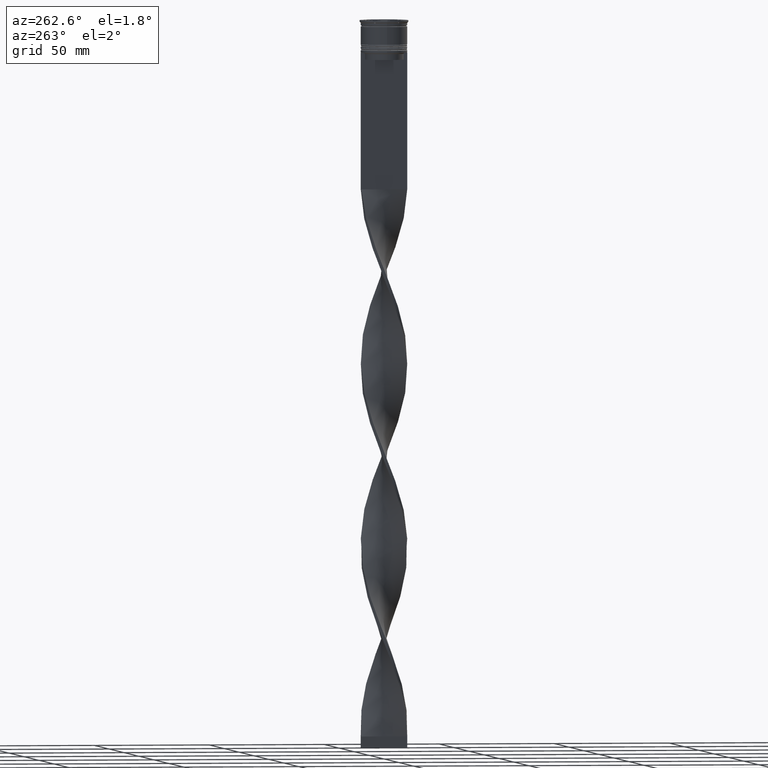
[diagram: clean part render]
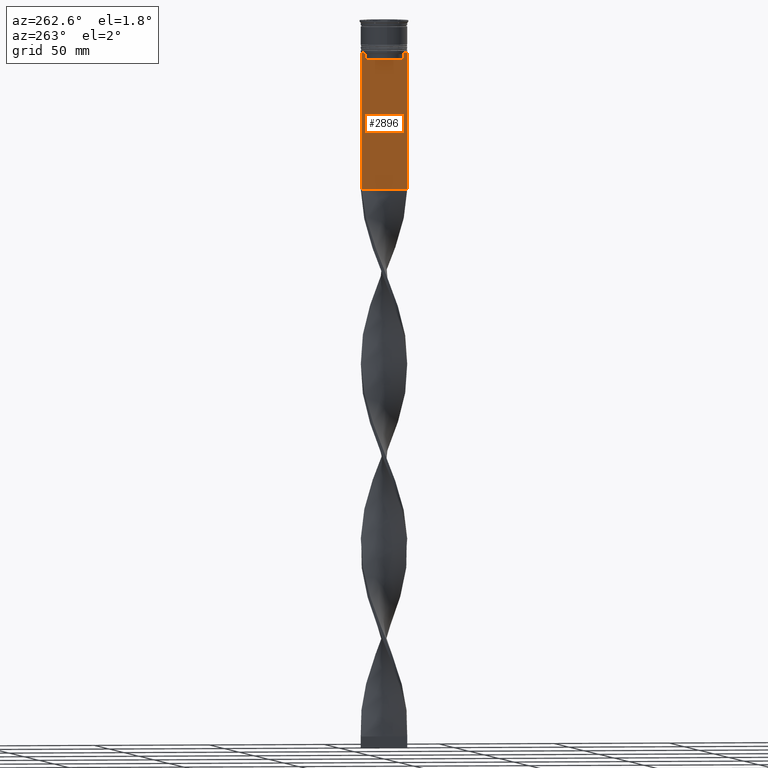
[diagram: same view with one face highlighted and labeled with its STEP entity id]
A machine part, auxiliary view. The second image highlights one B-rep face of the part: STEP entity #2896.
In plain terms, the highlighted planar face has unit normal (-1, 0, 0).
Its self-contained STEP definition (entity closure, byte-faithful):
#36 = CARTESIAN_POINT ( 'NONE',  ( -0.7499999999999997780, -8.868342573446296839, -14.00000000000000178 ) ) ;
#86 = EDGE_CURVE ( 'NONE', #260, #910, #2114, .T. ) ;
#109 = VECTOR ( 'NONE', #1554, 1000.000000000000000 ) ;
#187 = CARTESIAN_POINT ( 'NONE',  ( -0.7499999999999997780, 8.400000000000003908, -17.00000000000000000 ) ) ;
#220 = DIRECTION ( 'NONE',  ( 0.000000000000000000, 0.000000000000000000, -1.000000000000000000 ) ) ;
#224 = CARTESIAN_POINT ( 'NONE',  ( -0.7499999999999998890, -10.00000000000000533, -73.00000000000001421 ) ) ;
#260 = VERTEX_POINT ( 'NONE', #2973 ) ;
#267 = EDGE_CURVE ( 'NONE', #2149, #3509, #2883, .T. ) ;
#299 = CARTESIAN_POINT ( 'NONE',  ( -0.7499999999999997780, -10.00000000000000533, -14.00000000000000178 ) ) ;
#327 = CARTESIAN_POINT ( 'NONE',  ( -0.7499999999999997780, -10.00000000000000533, -73.00000000000001421 ) ) ;
#334 = CARTESIAN_POINT ( 'NONE',  ( -0.7499999999999997780, -10.00000000000000533, 6.056171120131581098 ) ) ;
#345 = ORIENTED_EDGE ( 'NONE', *, *, #267, .F. ) ;
#477 = ORIENTED_EDGE ( 'NONE', *, *, #983, .F. ) ;
#482 = ORIENTED_EDGE ( 'NONE', *, *, #4131, .F. ) ;
#493 = EDGE_CURVE ( 'NONE', #1696, #786, #2346, .T. ) ;
#647 = LINE ( 'NONE', #327, #1223 ) ;
#658 = VERTEX_POINT ( 'NONE', #3743 ) ;
#666 = VECTOR ( 'NONE', #1903, 1000.000000000000000 ) ;
#786 = VERTEX_POINT ( 'NONE', #2183 ) ;
#864 = CARTESIAN_POINT ( 'NONE',  ( -0.7499999999999997780, 8.868342573446296839, -14.00000000000000178 ) ) ;
#873 = AXIS2_PLACEMENT_3D ( 'NONE', #4226, #3007, #1254 ) ;
#910 = VERTEX_POINT ( 'NONE', #864 ) ;
#948 = ORIENTED_EDGE ( 'NONE', *, *, #493, .T. ) ;
#960 = ORIENTED_EDGE ( 'NONE', *, *, #1411, .F. ) ;
#983 = EDGE_CURVE ( 'NONE', #1696, #260, #2602, .T. ) ;
#1021 = CARTESIAN_POINT ( 'NONE',  ( -0.7499999999999997780, -10.00000000000000533, -14.00000000000000178 ) ) ;
#1029 = VECTOR ( 'NONE', #1975, 1000.000000000000000 ) ;
#1065 = CARTESIAN_POINT ( 'NONE',  ( -0.7499999999999997780, 8.533766897779926808, -14.33335221373273782 ) ) ;
#1137 = EDGE_CURVE ( 'NONE', #2538, #786, #647, .T. ) ;
#1174 = ORIENTED_EDGE ( 'NONE', *, *, #1787, .F. ) ;
#1191 = CARTESIAN_POINT ( 'NONE',  ( -0.7499999999999997780, -8.366450860430608927, -14.50000000000000000 ) ) ;
#1203 = EDGE_CURVE ( 'NONE', #910, #1212, #3201, .T. ) ;
#1212 = VERTEX_POINT ( 'NONE', #1410 ) ;
#1223 = VECTOR ( 'NONE', #1664, 1000.000000000000000 ) ;
#1254 = DIRECTION ( 'NONE',  ( 0.000000000000000000, 0.000000000000000000, 1.000000000000000000 ) ) ;
#1369 = DIRECTION ( 'NONE',  ( 0.000000000000000000, -1.000000000000000000, 0.000000000000000000 ) ) ;
#1401 = CARTESIAN_POINT ( 'NONE',  ( -0.7499999999999997780, -10.00000000000000533, -14.00000000000000178 ) ) ;
#1410 = CARTESIAN_POINT ( 'NONE',  ( -0.7499999999999997780, 8.366450860430608927, -14.50000000000000000 ) ) ;
#1411 = EDGE_CURVE ( 'NONE', #3328, #658, #1450, .T. ) ;
#1450 = LINE ( 'NONE', #3757, #3925 ) ;
#1484 = CARTESIAN_POINT ( 'NONE',  ( -0.7499999999999997780, -8.366450860430608927, 0.000000000000000000 ) ) ;
#1554 = DIRECTION ( 'NONE',  ( -0.000000000000000000, -0.000000000000000000, 1.000000000000000000 ) ) ;
#1613 = DIRECTION ( 'NONE',  ( 0.000000000000000000, -1.000000000000000000, 0.000000000000000000 ) ) ;
#1664 = DIRECTION ( 'NONE',  ( 0.000000000000000000, 1.000000000000000000, 0.000000000000000000 ) ) ;
#1696 = VERTEX_POINT ( 'NONE', #2192 ) ;
#1737 = EDGE_CURVE ( 'NONE', #3142, #2538, #3984, .T. ) ;
#1787 = EDGE_CURVE ( 'NONE', #3509, #3328, #3990, .T. ) ;
#1790 = VECTOR ( 'NONE', #1613, 1000.000000000000000 ) ;
#1870 = CARTESIAN_POINT ( 'NONE',  ( -0.7499999999999997780, -8.868342573446296839, -14.00000000000000178 ) ) ;
#1903 = DIRECTION ( 'NONE',  ( 0.000000000000000000, 0.000000000000000000, -1.000000000000000000 ) ) ;
#1975 = DIRECTION ( 'NONE',  ( 0.000000000000000000, 0.000000000000000000, -1.000000000000000000 ) ) ;
#2028 = CARTESIAN_POINT ( 'NONE',  ( -0.7499999999999997780, -8.701063080777123204, -14.16668447713511547 ) ) ;
#2040 = CARTESIAN_POINT ( 'NONE',  ( -0.7499999999999997780, 8.366450860430608927, -14.50000000000000000 ) ) ;
#2075 = VECTOR ( 'NONE', #3194, 1000.000000000000000 ) ;
#2114 = LINE ( 'NONE', #1021, #3438 ) ;
#2149 = VERTEX_POINT ( 'NONE', #3958 ) ;
#2183 = CARTESIAN_POINT ( 'NONE',  ( -0.7499999999999997780, 9.999999999999998224, -73.00000000000001421 ) ) ;
#2192 = CARTESIAN_POINT ( 'NONE',  ( -0.7499999999999997780, 9.999999999999998224, -14.00000000000000178 ) ) ;
#2193 = CARTESIAN_POINT ( 'NONE',  ( -0.7499999999999997780, 8.366450860430608927, 0.000000000000000000 ) ) ;
#2346 = LINE ( 'NONE', #3661, #666 ) ;
#2368 = ORIENTED_EDGE ( 'NONE', *, *, #86, .F. ) ;
#2502 = ORIENTED_EDGE ( 'NONE', *, *, #1737, .F. ) ;
#2538 = VERTEX_POINT ( 'NONE', #224 ) ;
#2602 = LINE ( 'NONE', #299, #1790 ) ;
#2607 = EDGE_LOOP ( 'NONE', ( #3000, #2368, #477, #948, #3868, #2502, #482, #960, #1174, #345, #3946, #3783 ) ) ;
#2684 = FACE_OUTER_BOUND ( 'NONE', #2607, .T. ) ;
#2725 = CARTESIAN_POINT ( 'NONE',  ( -0.7499999999999997780, 8.366450860430608927, -17.00000000000000000 ) ) ;
#2883 = LINE ( 'NONE', #1484, #109 ) ;
#2896 = ADVANCED_FACE ( 'NONE', ( #2684 ), #2914, .T. ) ;
#2914 = PLANE ( 'NONE',  #873 ) ;
#2973 = CARTESIAN_POINT ( 'NONE',  ( -0.7499999999999997780, 9.871550030263740894, -14.00000000000000178 ) ) ;
#3000 = ORIENTED_EDGE ( 'NONE', *, *, #1203, .F. ) ;
#3007 = DIRECTION ( 'NONE',  ( -1.000000000000000000, 0.000000000000000000, 0.000000000000000000 ) ) ;
#3026 = CARTESIAN_POINT ( 'NONE',  ( -0.7499999999999997780, -10.00000000000000533, -14.00000000000000178 ) ) ;
#3064 = VERTEX_POINT ( 'NONE', #2725 ) ;
#3142 = VERTEX_POINT ( 'NONE', #1401 ) ;
#3149 = DIRECTION ( 'NONE',  ( 0.000000000000000000, -1.000000000000000000, 0.000000000000000000 ) ) ;
#3162 = LINE ( 'NONE', #2193, #3580 ) ;
#3194 = DIRECTION ( 'NONE',  ( 0.000000000000000000, -1.000000000000000000, 0.000000000000000000 ) ) ;
#3201 = B_SPLINE_CURVE_WITH_KNOTS ( 'NONE', 3,
 ( #3375, #3356, #1065, #2040 ),
 .UNSPECIFIED., .F., .F.,
 ( 4, 4 ),
 ( 0.01512225952876174867, 0.01583070519299695222 ),
 .UNSPECIFIED. ) ;
#3328 = VERTEX_POINT ( 'NONE', #1870 ) ;
#3333 = EDGE_CURVE ( 'NONE', #1212, #3064, #3162, .T. ) ;
#3356 = CARTESIAN_POINT ( 'NONE',  ( -0.7499999999999997780, 8.701063075415252257, -14.16668448247791723 ) ) ;
#3375 = CARTESIAN_POINT ( 'NONE',  ( -0.7499999999999997780, 8.868342573446296839, -14.00000000000000178 ) ) ;
#3438 = VECTOR ( 'NONE', #1369, 1000.000000000000000 ) ;
#3453 = VECTOR ( 'NONE', #3695, 1000.000000000000000 ) ;
#3509 = VERTEX_POINT ( 'NONE', #1191 ) ;
#3580 = VECTOR ( 'NONE', #220, 1000.000000000000000 ) ;
#3618 = CARTESIAN_POINT ( 'NONE',  ( -0.7499999999999997780, -8.533766903463440912, -14.33335220807192201 ) ) ;
#3659 = EDGE_CURVE ( 'NONE', #3064, #2149, #4134, .T. ) ;
#3661 = CARTESIAN_POINT ( 'NONE',  ( -0.7499999999999997780, 9.999999999999998224, 6.056171120131581098 ) ) ;
#3666 = CARTESIAN_POINT ( 'NONE',  ( -0.7499999999999997780, -8.366450860430608927, -14.50000000000000000 ) ) ;
#3695 = DIRECTION ( 'NONE',  ( 0.000000000000000000, -1.000000000000000000, 0.000000000000000000 ) ) ;
#3713 = LINE ( 'NONE', #3026, #3453 ) ;
#3743 = CARTESIAN_POINT ( 'NONE',  ( -0.7499999999999997780, -9.871550030263740894, -14.00000000000000178 ) ) ;
#3757 = CARTESIAN_POINT ( 'NONE',  ( -0.7499999999999997780, -10.00000000000000533, -14.00000000000000178 ) ) ;
#3783 = ORIENTED_EDGE ( 'NONE', *, *, #3333, .F. ) ;
#3868 = ORIENTED_EDGE ( 'NONE', *, *, #1137, .F. ) ;
#3925 = VECTOR ( 'NONE', #3149, 1000.000000000000000 ) ;
#3946 = ORIENTED_EDGE ( 'NONE', *, *, #3659, .F. ) ;
#3958 = CARTESIAN_POINT ( 'NONE',  ( -0.7499999999999997780, -8.366450860430608927, -17.00000000000000000 ) ) ;
#3984 = LINE ( 'NONE', #334, #1029 ) ;
#3990 = B_SPLINE_CURVE_WITH_KNOTS ( 'NONE', 3,
 ( #3666, #3618, #2028, #36 ),
 .UNSPECIFIED., .F., .F.,
 ( 4, 4 ),
 ( 0.03866293624047253963, 0.03937282246709321309 ),
 .UNSPECIFIED. ) ;
#4131 = EDGE_CURVE ( 'NONE', #658, #3142, #3713, .T. ) ;
#4134 = LINE ( 'NONE', #187, #2075 ) ;
#4226 = CARTESIAN_POINT ( 'NONE',  ( -0.7499999999999997780, -10.00000000000000533, 6.056171120131581098 ) ) ;